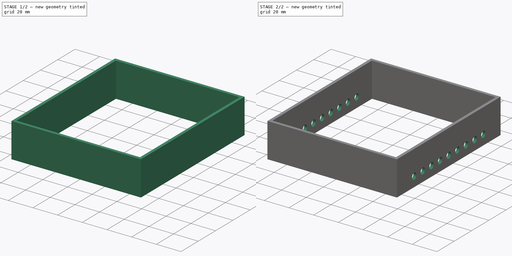
[diagram: build sequence overview — one tinted view per stage of 2, left to right]
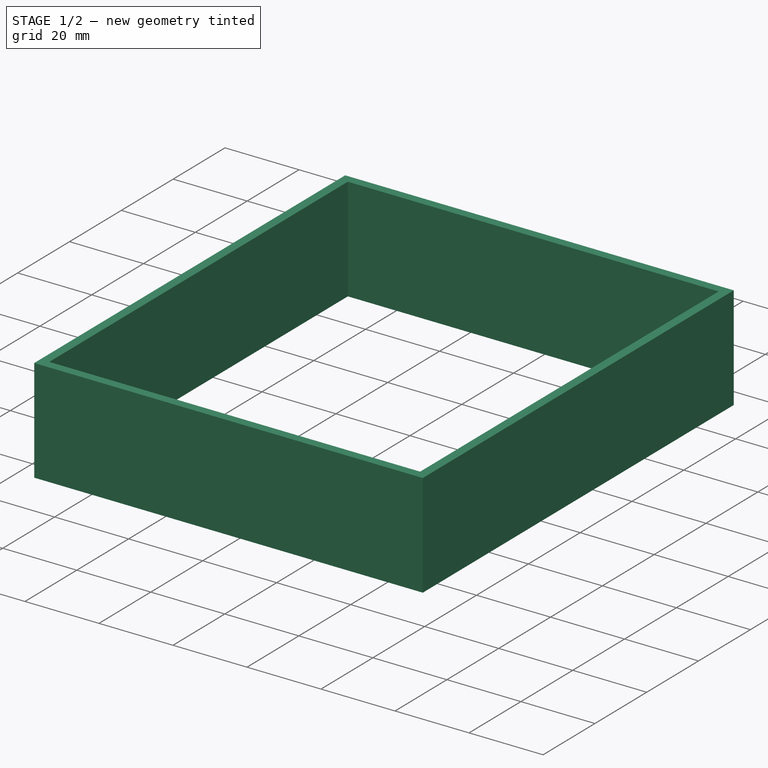
[diagram: stage 1 of 2 — iso view after this stage's code; geometry added in this stage tinted green]
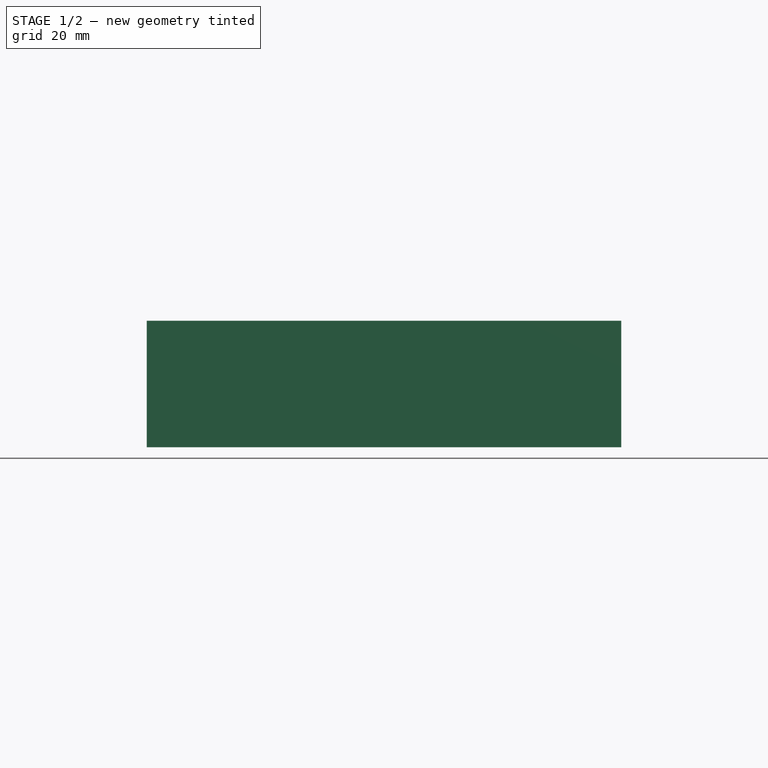
[diagram: stage 1 of 2 — front view after this stage's code; geometry added in this stage tinted green]
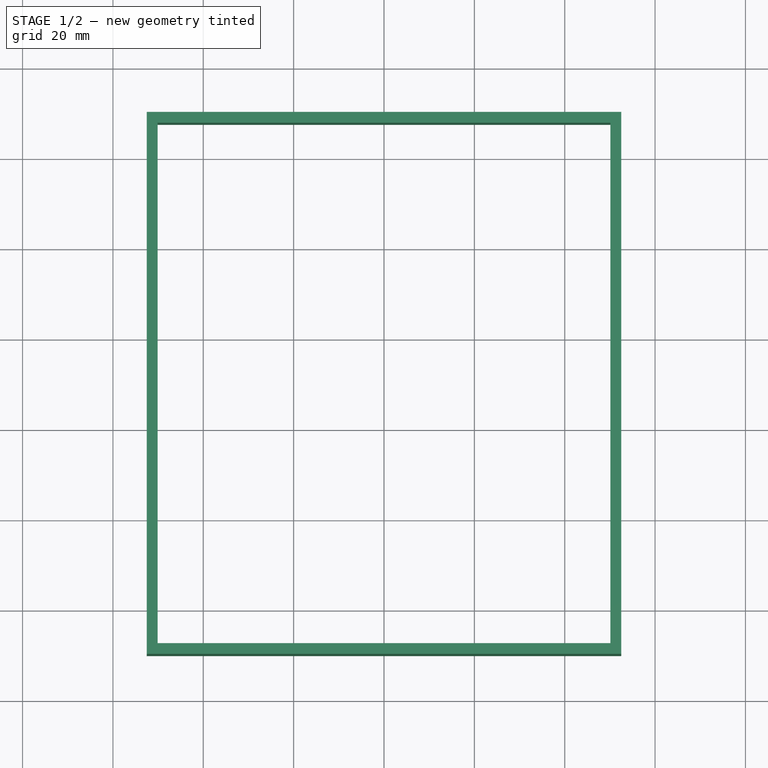
[diagram: stage 1 of 2 — top view after this stage's code; geometry added in this stage tinted green]
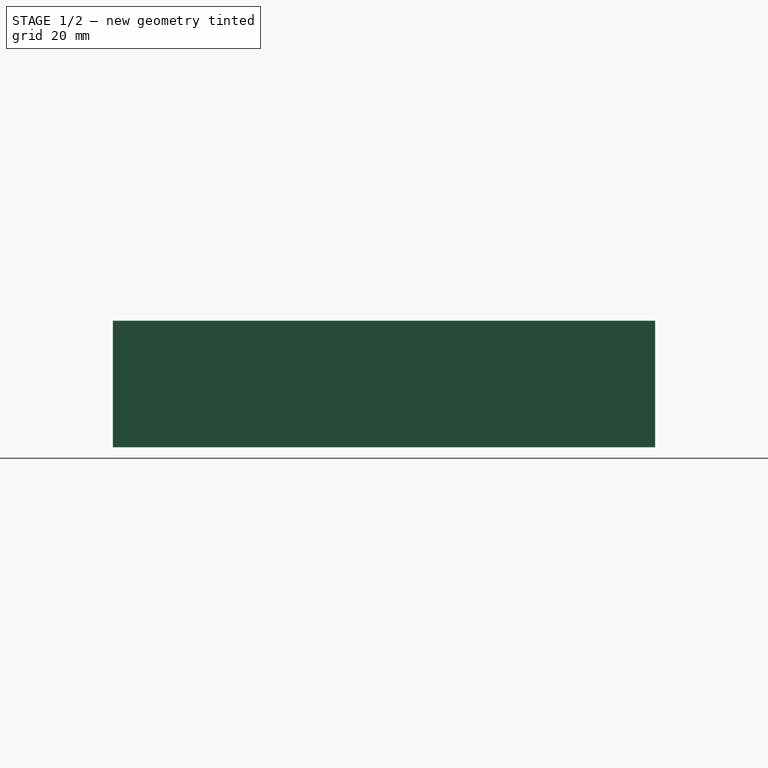
[diagram: stage 1 of 2 — right view after this stage's code; geometry added in this stage tinted green]
FCSTD DOCUMENT  (FreeCAD 0.16R6706 (Git))
Label: LidarChassis2
License: All rights reserved
LicenseURL: http://de.wikipedia.org/wiki/Alle_Rechte_vorbehalten
objects: Sketcher::SketchObject×3, PartDesign::Pocket×2, PartDesign::Pad×1
note: 9 computed .brp shape members not serialized (recipe doc carries the construction recipe); baked Part::Feature solids carry a one-line shape summary decoded from their .brp

FEATURE [Sketcher::SketchObject] Sketch  label="Basis"
  sketch-geometry (4):
    g0: LineSegment StartX=-52.5 StartY=50 StartZ=0 EndX=52.5 EndY=50 EndZ=0
    g1: LineSegment StartX=52.5 StartY=50 StartZ=0 EndX=52.5 EndY=-70 EndZ=0
    g2: LineSegment StartX=52.5 StartY=-70 StartZ=0 EndX=-52.5 EndY=-70 EndZ=0
    g3: LineSegment StartX=-52.5 StartY=-70 StartZ=0 EndX=-52.5 EndY=50 EndZ=0
  constraints (12):
    c: Coincident(g0,g1)
    c: Coincident(g1,g2)
    c: Coincident(g2,g3)
    c: Coincident(g3,g0)
    c: Horizontal(g0)
    c: Horizontal(g2)
    c: Vertical(g1)
    c: Vertical(g3)
    c: Symmetric(g0,g0,g-2)
    c: DistanceX(g0,g0) = 105
    c: DistanceY(g-1,g0) = 50
    c: DistanceY(g2,g-1) = 70
FEATURE [PartDesign::Pad] Pad
  Length = 28
  Length2 = 100
  Sketch = -> Sketch
  Type = 0
FEATURE [Sketcher::SketchObject] Sketch001  label="Rahmen"
  Placement = pos=(0,0,28) rot=(0,0,1;0rad)
  Support = -> Pad [Face6]
  sketch-geometry (4):
    g0: LineSegment StartX=-50.1 StartY=47.6 StartZ=0 EndX=50.1 EndY=47.6 EndZ=0
    g1: LineSegment StartX=50.1 StartY=47.6 StartZ=0 EndX=50.1 EndY=-67.6 EndZ=0
    g2: LineSegment StartX=50.1 StartY=-67.6 StartZ=0 EndX=-50.1 EndY=-67.6 EndZ=0
    g3: LineSegment StartX=-50.1 StartY=-67.6 StartZ=0 EndX=-50.1 EndY=47.6 EndZ=0
  constraints (12):
    c: Coincident(g0,g1)
    c: Coincident(g1,g2)
    c: Coincident(g2,g3)
    c: Coincident(g3,g0)
    c: Horizontal(g0)
    c: Horizontal(g2)
    c: Vertical(g1)
    c: Vertical(g3)
    c: Symmetric(g0,g0,g-2)
    c: DistanceX(g0,g0) = 100.2
    c: DistanceY(g-1,g0) = 47.6
    c: DistanceY(g1,g-1) = 67.6
FEATURE [PartDesign::Pocket] Pocket
  Length = 5
  Sketch = -> Sketch001
  Type = 1
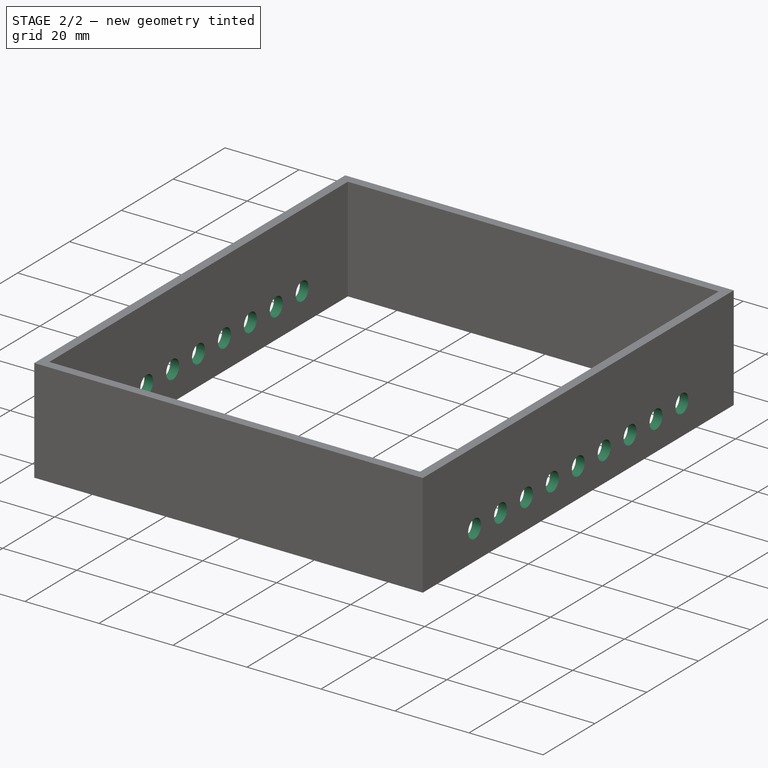
[diagram: stage 2 of 2 — iso view after this stage's code; geometry added in this stage tinted green]
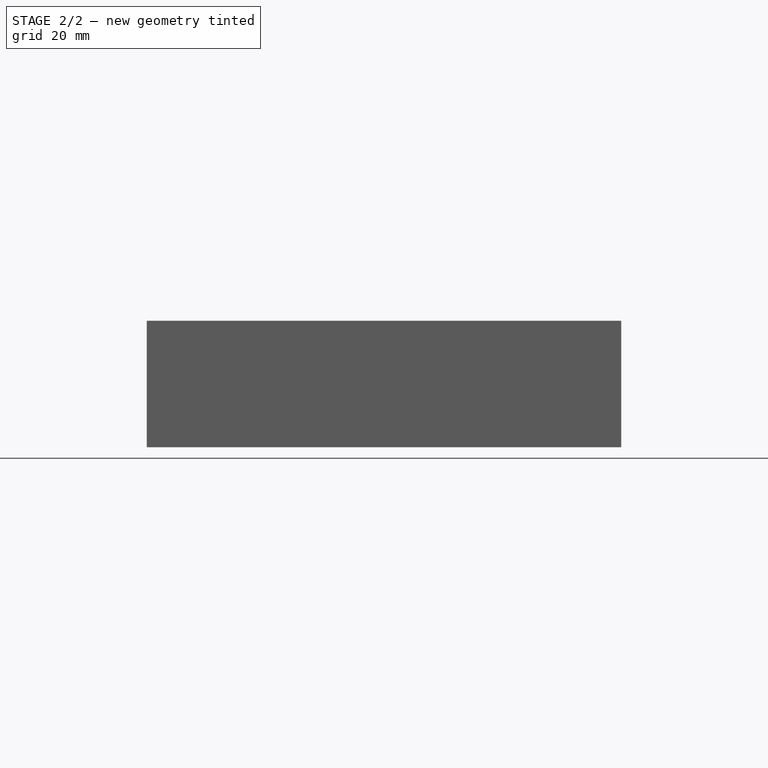
[diagram: stage 2 of 2 — front view after this stage's code; geometry added in this stage tinted green]
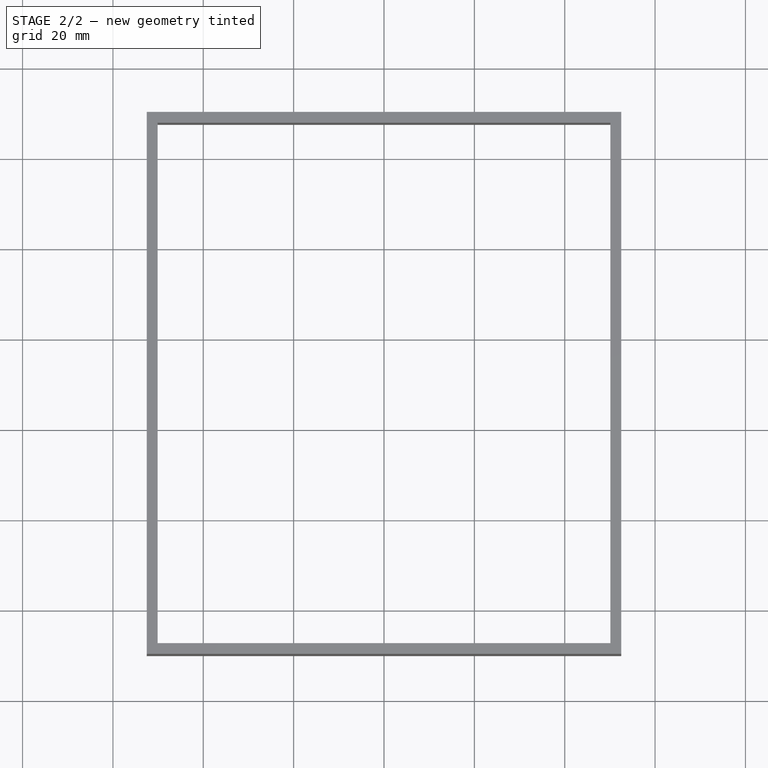
[diagram: stage 2 of 2 — top view after this stage's code; geometry added in this stage tinted green]
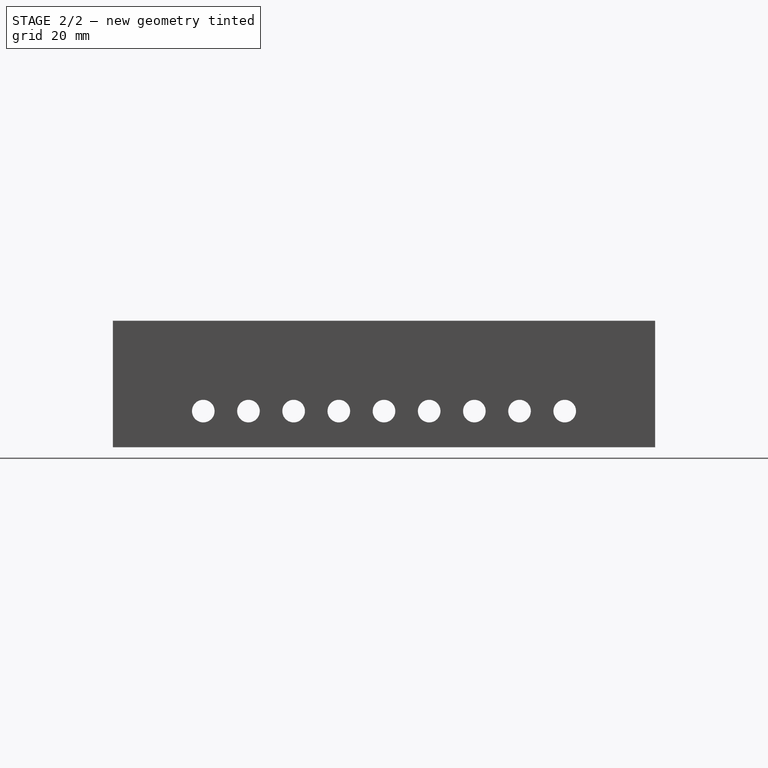
[diagram: stage 2 of 2 — right view after this stage's code; geometry added in this stage tinted green]
FEATURE [Sketcher::SketchObject] Sketch002  label="Lueftung"
  Placement = pos=(-52.5,0,0) rot=(0.57735,-0.57735,-0.57735;2.0944rad)
  Support = -> Pocket [Face2]
  sketch-geometry (9):
    g0: Circle CenterX=-10 CenterY=8 CenterZ=0 NormalX=0 NormalY=0 NormalZ=1 Radius=2.5
    g1: Circle CenterX=10 CenterY=8 CenterZ=0 NormalX=0 NormalY=0 NormalZ=1 Radius=2.5
    g2: Circle CenterX=-20 CenterY=8 CenterZ=0 NormalX=0 NormalY=0 NormalZ=1 Radius=2.5
    g3: Circle CenterX=20 CenterY=8 CenterZ=0 NormalX=0 NormalY=0 NormalZ=1 Radius=2.5
    g4: Circle CenterX=30 CenterY=8 CenterZ=0 NormalX=0 NormalY=0 NormalZ=1 Radius=2.5
    g5: Circle CenterX=40 CenterY=8 CenterZ=0 NormalX=0 NormalY=0 NormalZ=1 Radius=2.5
    g6: Circle CenterX=50 CenterY=8 CenterZ=0 NormalX=0 NormalY=0 NormalZ=1 Radius=2.5
    g7: Circle CenterX=-30 CenterY=8 CenterZ=0 NormalX=0 NormalY=0 NormalZ=1 Radius=2.5
    g8: Circle CenterX=0 CenterY=8 CenterZ=0 NormalX=0 NormalY=0 NormalZ=1 Radius=2.5
  constraints (18):
    c: Radius(g0) = 2.5
    c: DistanceX(g0,g-1) = 10
    c: DistanceY(g-1,g0) = 8
    c: Radius(g1) = 2.5
    c: Equal(g1, g2-g8) x7
    c: Symmetric(g0,g1,g-2)
    c: DistanceY(g-1,g2) = 8
    c: DistanceX(g2,g-1) = 20
    c: Symmetric(g2,g3,g-2)
    c: DistanceY(g-1,g8) = 8
    c: PointOnObject(g8,g-2)
    c: DistanceY(g-1,g7) = 8
    c: DistanceX(g7,g-1) = 30
    c: Symmetric(g7,g4,g-2)
    c: DistanceY(g-1,g5) = 8
    c: DistanceY(g-1,g6) = 8
    c: DistanceX(g-1,g5) = 40
    c: DistanceX(g-1,g6) = 50
FEATURE [PartDesign::Pocket] Pocket001
  Length = 5
  Sketch = -> Sketch002
  Type = 1
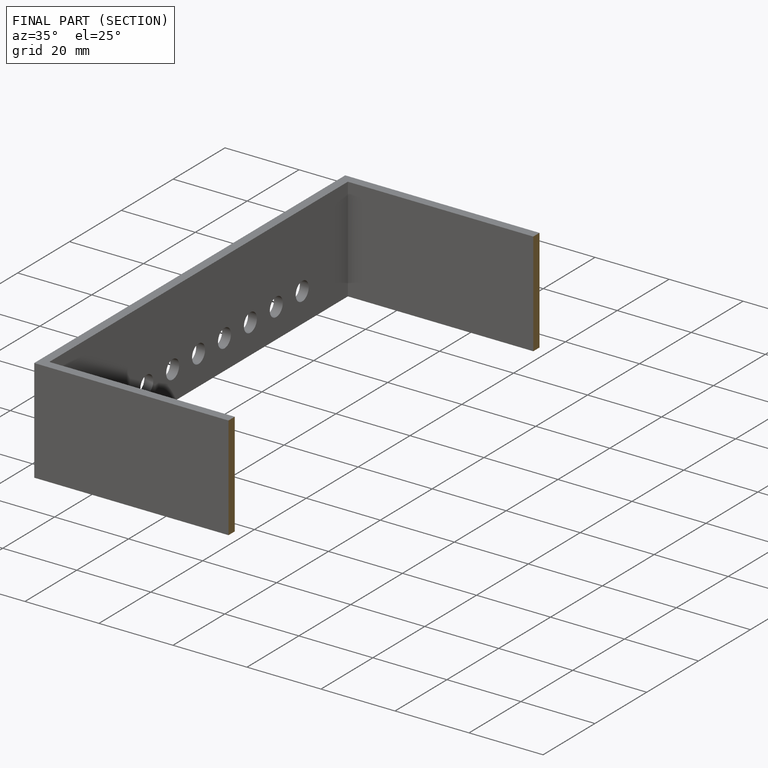
[diagram: finished part — half-section view (interior)]
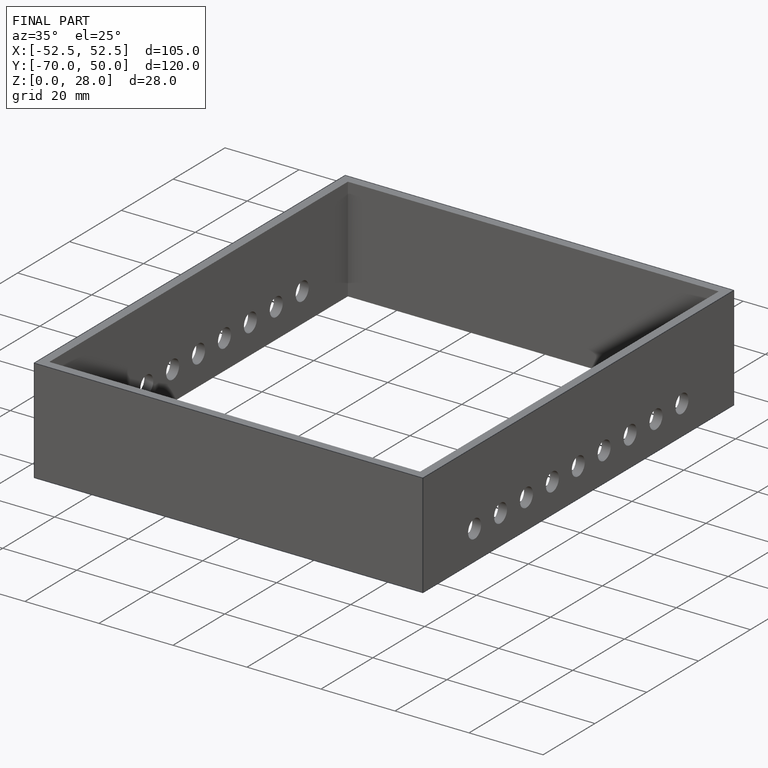
[diagram: finished part — iso view with bounding-box wireframe]
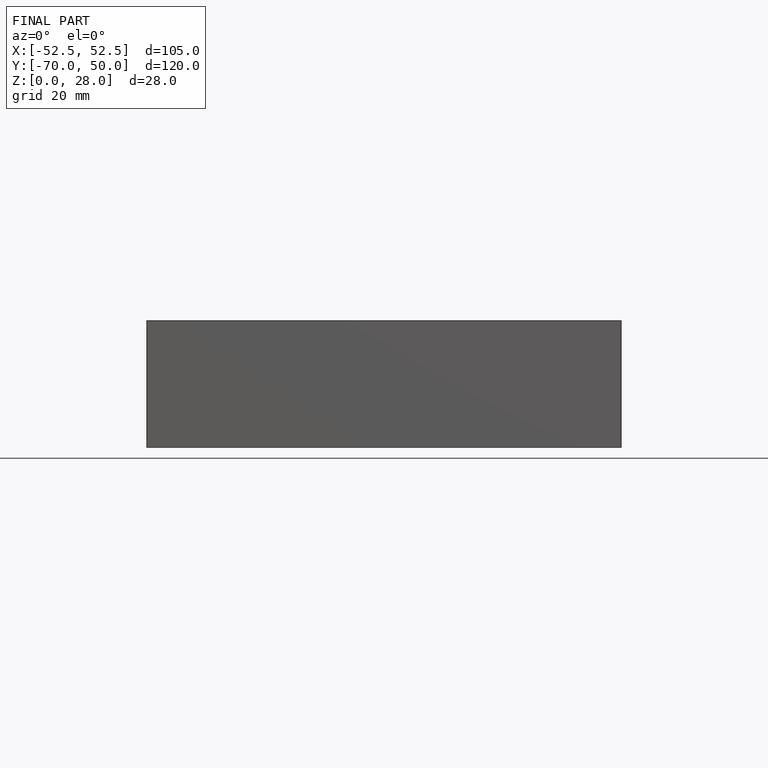
[diagram: finished part — front view with bounding-box wireframe]
